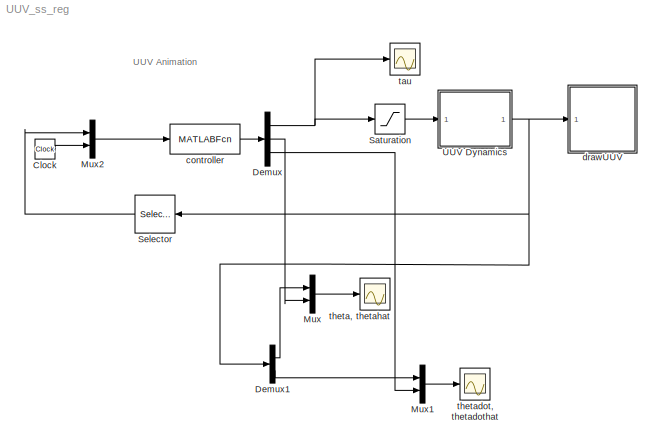
MODEL UUV_ss_reg
KIND model
BLOCK [Clock] Clock
  SID = 49
BLOCK [Demux] Demux
  DisplayOption = bar
  Outputs = 3
  Ports = [1, 3]
  SID = 41
BLOCK [Demux] Demux1
  DisplayOption = bar
  Outputs = 2
  Ports = [1, 2]
  SID = 22
BLOCK [Mux] Mux
  DisplayOption = bar
  Inputs = 2
  Ports = [2, 1]
  SID = 45
BLOCK [Mux] Mux1
  DisplayOption = bar
  Inputs = 2
  Ports = [2, 1]
  SID = 46
BLOCK [Mux] Mux2
  DisplayOption = bar
  Inputs = 2
  Ports = [2, 1]
  SID = 48
BLOCK [Saturate] Saturation
  InputPortMap = u0
  LowerLimit = -250
  Ports = [1, 1]
  SID = 35
  UpperLimit = 250
BLOCK [Selector] Selector
  IndexOptions = Index vector (dialog)
  Indices = [1]
  InputPortWidth = 2
  OutputSizes = 1
  Ports = [1, 1]
  SID = 51
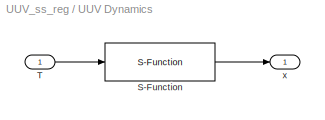
BLOCK [SubSystem] UUV Dynamics
  FunctionWithSeparateData = off
  MaskHideContents = off
  MinAlgLoopOccurrences = off
  Opaque = off
  Ports = [1, 1]
  PropExecContextOutsideSubsystem = off
  RTWSystemCode = Auto
  RequestExecContextInheritance = off
  SID = 11
BLOCK [S-Function] UUV Dynamics/S-Function
  EnableBusSupport = off
  FunctionName = UUV_dynamics
  Parameters = P
  Ports = [1, 1]
  SID = 15
BLOCK [Inport] UUV Dynamics/T
  IconDisplay = Port number
  SID = 12
BLOCK [Outport] UUV Dynamics/x
  IconDisplay = Port number
  SID = 25
BLOCK [MATLABFcn] controller
  MATLABFcn = controller(u,P)
  OutputDimensions = 3
  Ports = [1, 1]
  SID = 40
  SampleTime = P.Ts
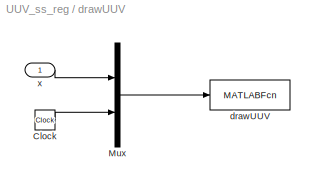
BLOCK [SubSystem] drawUUV
  FunctionWithSeparateData = off
  MaskHideContents = off
  MinAlgLoopOccurrences = off
  Opaque = off
  Ports = [1]
  PropExecContextOutsideSubsystem = off
  RTWSystemCode = Auto
  RequestExecContextInheritance = off
  SID = 4
BLOCK [Clock] drawUUV/Clock
  SID = 6
BLOCK [Mux] drawUUV/Mux
  DisplayOption = bar
  Inputs = 2
  Ports = [2, 1]
  SID = 7
BLOCK [MATLABFcn] drawUUV/drawUUV
  MATLABFcn = drawUUV(u,MajorAxis,MinorAxis,C_M)
  OutputDimensions = 0
  Ports = [1]
  SID = 8
  SampleTime = 0.1
BLOCK [Inport] drawUUV/x
  IconDisplay = Port number
  SID = 26
BLOCK [Scope] tau
  DataFormat = StructureWithTime
  Floating = off
  NumInputPorts = 1
  Ports = [1]
  SID = 34
  SampleTime = 0
  SaveName = ScopeData1
  ShowLegends = off
  TimeRange = 10
  YMax = 100
  YMin = -500
BLOCK [Scope] theta, thetahat
  DataFormat = StructureWithTime
  Floating = off
  NumInputPorts = 1
  Ports = [1]
  SID = 44
  SampleTime = 0
  SaveName = ScopeData2
  ShowLegends = off
  TimeRange = 10
  YMax = 0.6000000000000001
  YMin = -0.1
  ZoomMode = xonly
BLOCK [Scope] thetadot, thetadothat
  DataFormat = StructureWithTime
  Floating = off
  NumInputPorts = 1
  Ports = [1]
  SID = 43
  SampleTime = 0
  ShowLegends = off
  TimeRange = 10
  YMax = 4
  YMin = -1
  ZoomMode = xonly
ANNOTATION (root): UUV Animation
LINE Clock:1 -> Mux2:2
LINE Demux1:1 -> Mux:1
LINE Demux1:2 -> Mux1:1
NET Demux:1 -> Saturation:1, tau:1
LINE Demux:2 -> Mux:2
LINE Demux:3 -> Mux1:2
LINE Mux1:1 -> thetadot, thetadothat:1
LINE Mux2:1 -> controller:1
LINE Mux:1 -> theta, thetahat:1
LINE Saturation:1 -> UUV Dynamics:1
LINE Selector:1 -> Mux2:1
LINE UUV Dynamics/S-Function:1 -> UUV Dynamics/x:1
LINE UUV Dynamics/T:1 -> UUV Dynamics/S-Function:1
NET UUV Dynamics:1 -> Demux1:1, Selector:1, drawUUV:1
LINE controller:1 -> Demux:1
LINE drawUUV/Clock:1 -> drawUUV/Mux:2
LINE drawUUV/Mux:1 -> drawUUV/drawUUV:1
LINE drawUUV/x:1 -> drawUUV/Mux:1
note: NET lines group one-source signal fan-out (src -> all destinations, sorted); 1:1 wires keep LINE
